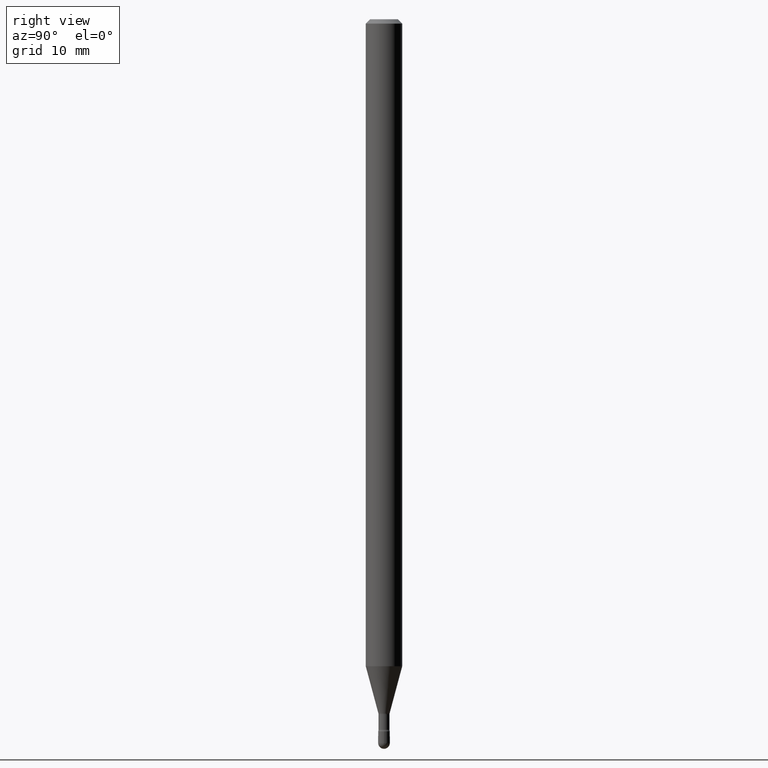
[diagram: clean part render]
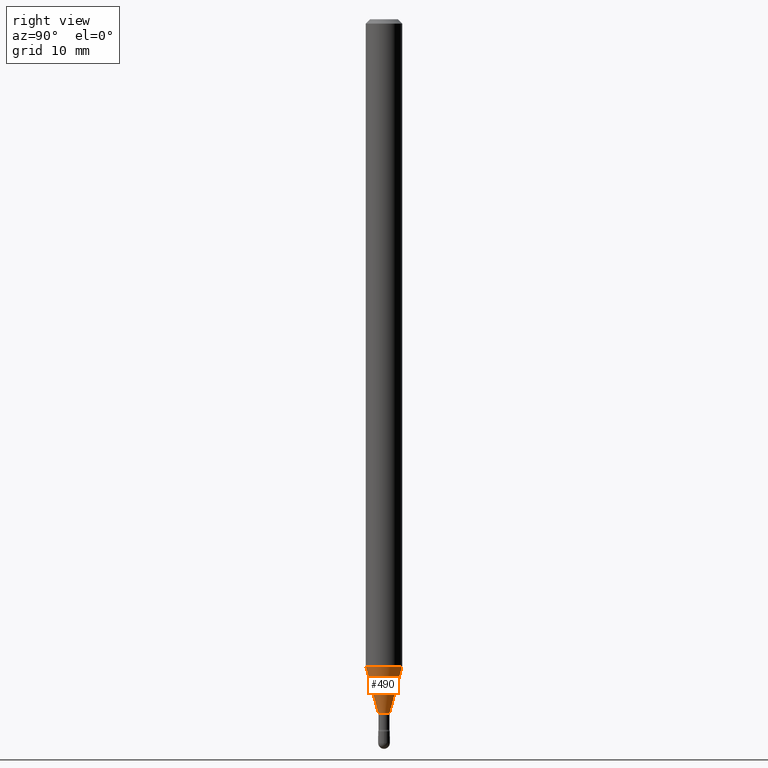
[diagram: same view with one face highlighted and labeled with its STEP entity id]
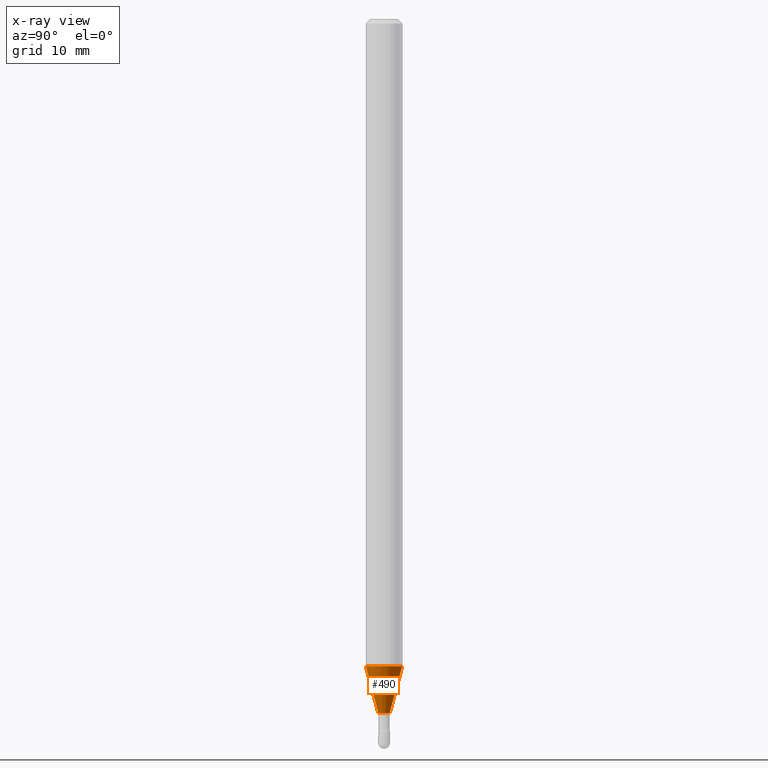
[diagram: x-ray of the same camera — body ghosted, the highlighted face saturated]
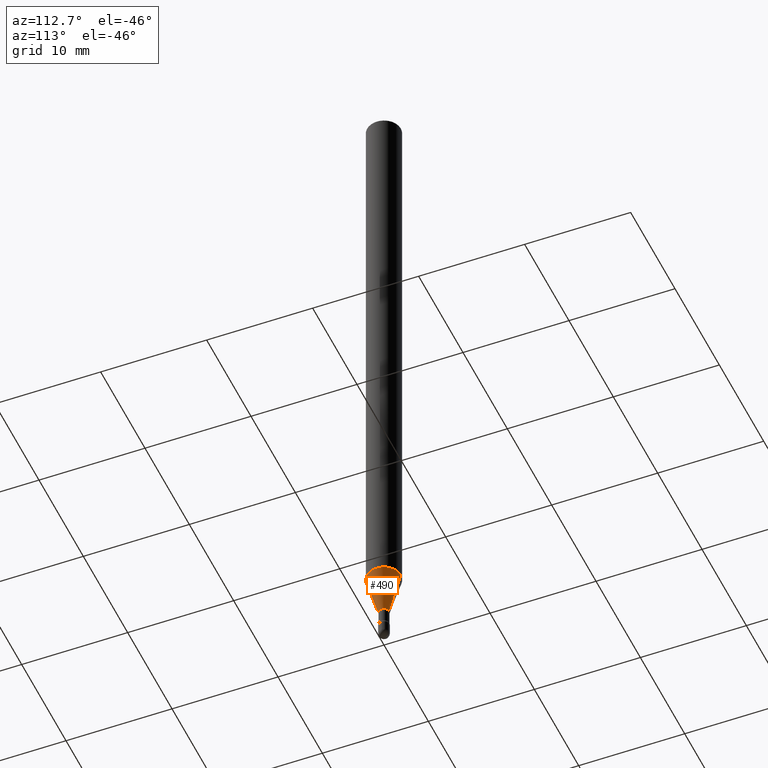
[diagram: same view with one face highlighted and labeled with its STEP entity id]
A machine part, right view. The second image highlights one B-rep face of the part: STEP entity #490.
The next image is the same camera in x-ray: the body ghosted, the highlighted face saturated — about 0% of this face is hidden behind the body in this view.
A second angle (auxiliary view) of the same face is appended — the face is thin or edge-on in the first view.
In plain terms, the highlighted conical surface has half-angle 15 deg.
Its self-contained STEP definition (entity closure, byte-faithful):
#11 = EDGE_CURVE ( 'NONE', #347, #132, #42, .T. ) ;
#42 = CIRCLE ( 'NONE', #52, 0.01931111260566397564 ) ;
#47 = EDGE_CURVE ( 'NONE', #347, #432, #553, .T. ) ;
#52 = AXIS2_PLACEMENT_3D ( 'NONE', #520, #135, #189 ) ;
#75 = DIRECTION ( 'NONE',  ( -1.807323732225327378E-15, -0.2588190451025177974, 0.9659258262890690894 ) ) ;
#78 = CARTESIAN_POINT ( 'NONE',  ( -1.348487785898901629E-16, -0.01931111260567227803, -2.378092501787273161 ) ) ;
#87 = ORIENTED_EDGE ( 'NONE', *, *, #11, .T. ) ;
#115 = AXIS2_PLACEMENT_3D ( 'NONE', #506, #306, #444 ) ;
#121 = CARTESIAN_POINT ( 'NONE',  ( 2.906514588320867785E-16, 0.01931111260565567325, -2.378092501787273161 ) ) ;
#124 = CARTESIAN_POINT ( 'NONE',  ( 1.372137078140565094E-16, 0.01931111260565567325, -2.378092501787273161 ) ) ;
#132 = VERTEX_POINT ( 'NONE', #121 ) ;
#134 = DIRECTION ( 'NONE',  ( -2.445423680447958986E-29, 3.491545961467181142E-15, 1.000000000000000000 ) ) ;
#135 = DIRECTION ( 'NONE',  ( -2.445423680447958986E-29, 3.491545961467181142E-15, 1.000000000000000000 ) ) ;
#189 = DIRECTION ( 'NONE',  ( -6.982962677686265922E-15, -1.000000000000000000, 0.000000000000000000 ) ) ;
#244 = ORIENTED_EDGE ( 'NONE', *, *, #357, .F. ) ;
#257 = CARTESIAN_POINT ( 'NONE',  ( 5.815443718166328514E-29, -8.303219270610738665E-15, -2.378092501787273161 ) ) ;
#261 = VECTOR ( 'NONE', #296, 39.37007874015748854 ) ;
#272 = CONICAL_SURFACE ( 'NONE', #400, 0.01931111260566397564, 0.2617993877991498519 ) ;
#291 = LINE ( 'NONE', #124, #261 ) ;
#296 = DIRECTION ( 'NONE',  ( 1.839019923739597160E-15, 0.2588190451025245142, 0.9659258262890670910 ) ) ;
#306 = DIRECTION ( 'NONE',  ( -2.445423680447958986E-29, 3.491545961467181142E-15, 1.000000000000000000 ) ) ;
#328 = CARTESIAN_POINT ( 'NONE',  ( -1.348487785898901629E-16, -0.01931111260567227803, -2.378092501787273161 ) ) ;
#347 = VERTEX_POINT ( 'NONE', #78 ) ;
#357 = EDGE_CURVE ( 'NONE', #432, #397, #529, .T. ) ;
#397 = VERTEX_POINT ( 'NONE', #513 ) ;
#400 = AXIS2_PLACEMENT_3D ( 'NONE', #257, #134, #478 ) ;
#417 = EDGE_CURVE ( 'NONE', #132, #397, #291, .T. ) ;
#432 = VERTEX_POINT ( 'NONE', #436 ) ;
#436 = CARTESIAN_POINT ( 'NONE',  ( -4.364351673553375831E-16, -0.06250000000000775768, -2.216909379709239847 ) ) ;
#444 = DIRECTION ( 'NONE',  ( -6.982962677686265922E-15, -1.000000000000000000, 4.370956789862821150E-15 ) ) ;
#459 = VECTOR ( 'NONE', #75, 39.37007874015748143 ) ;
#462 = ORIENTED_EDGE ( 'NONE', *, *, #417, .T. ) ;
#470 = EDGE_LOOP ( 'NONE', ( #87, #462, #244, #561 ) ) ;
#478 = DIRECTION ( 'NONE',  ( -6.982962677686265922E-15, -1.000000000000000000, 0.000000000000000000 ) ) ;
#490 = ADVANCED_FACE ( 'NONE', ( #557 ), #272, .T. ) ;
#506 = CARTESIAN_POINT ( 'NONE',  ( 5.421282694548172872E-29, -7.740440991662511567E-15, -2.216909379709240291 ) ) ;
#513 = CARTESIAN_POINT ( 'NONE',  ( 4.440892098501165545E-16, 0.06249999999999224232, -2.216909379709240735 ) ) ;
#520 = CARTESIAN_POINT ( 'NONE',  ( 5.815443718166328514E-29, -8.303219270610738665E-15, -2.378092501787273161 ) ) ;
#529 = CIRCLE ( 'NONE', #115, 0.06250000000000000000 ) ;
#553 = LINE ( 'NONE', #328, #459 ) ;
#557 = FACE_OUTER_BOUND ( 'NONE', #470, .T. ) ;
#561 = ORIENTED_EDGE ( 'NONE', *, *, #47, .F. ) ;